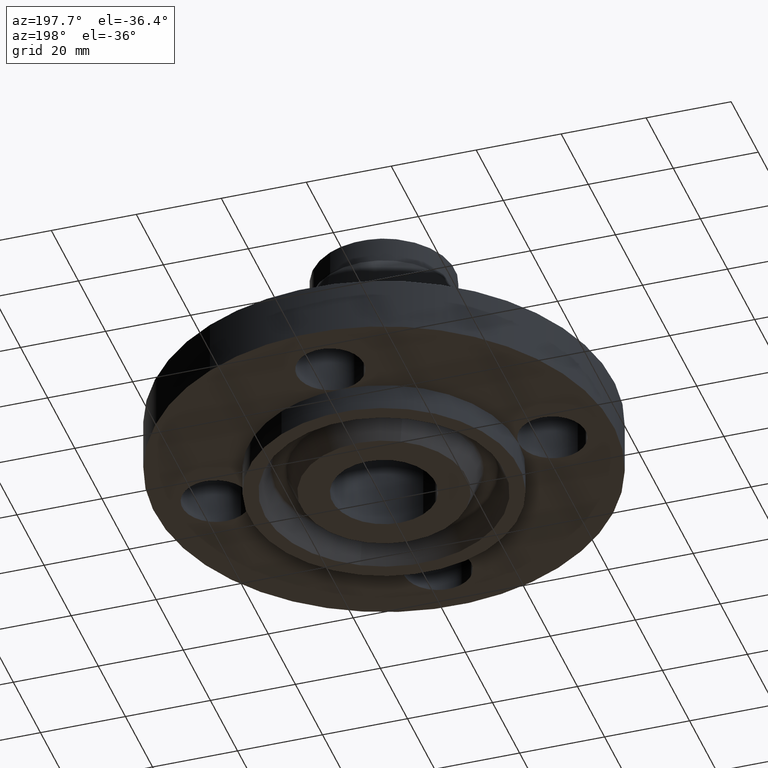
[diagram: clean part render]
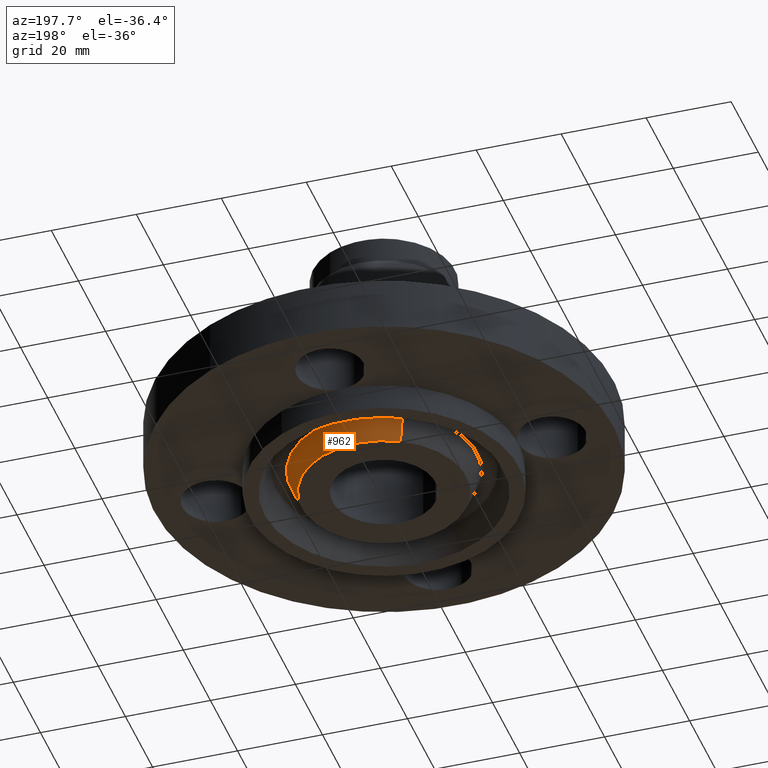
[diagram: same view with one face highlighted and labeled with its STEP entity id]
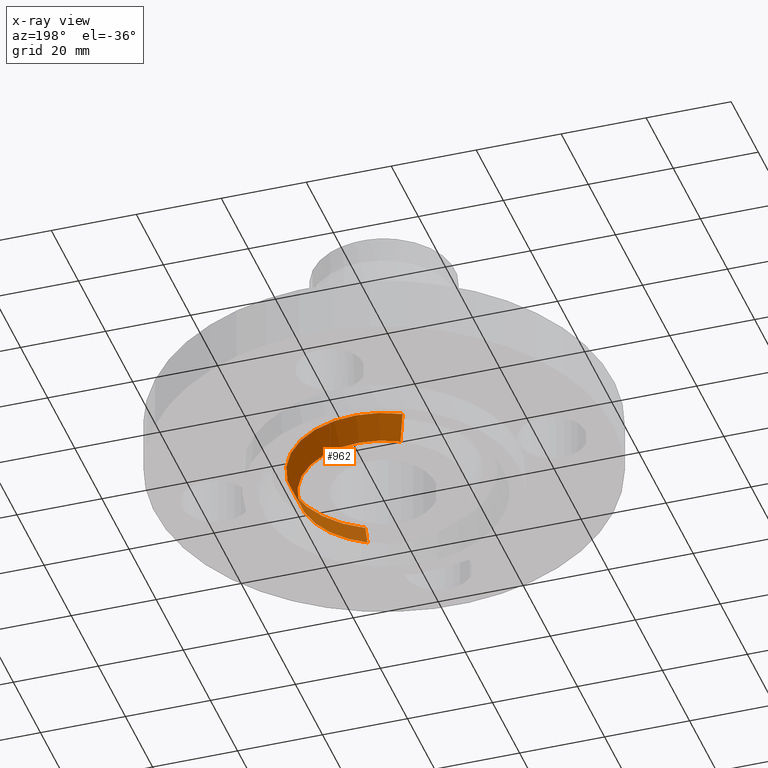
[diagram: x-ray of the same camera — body ghosted, the highlighted face saturated]
A machine part, auxiliary view. The second image highlights one B-rep face of the part: STEP entity #962.
The next image is the same camera in x-ray: the body ghosted, the highlighted face saturated — about 0% of this face is hidden behind the body in this view.
In plain terms, the highlighted conical surface has half-angle 23 deg.
Its self-contained STEP definition (entity closure, byte-faithful):
#768=AXIS2_PLACEMENT_3D('Circle Axis2P3D',#766,#767,$) ;
#912=AXIS2_PLACEMENT_3D('Circle Axis2P3D',#910,#911,$) ;
#944=AXIS2_PLACEMENT_3D('Cone Axis2P3D',#941,#942,#943) ;
#766=CARTESIAN_POINT('Axis2P3D Location',(6.99353086378E-017,0.,-0.250000000001)) ;
#770=CARTESIAN_POINT('Vertex',(-0.367060177995,0.67189914895,-0.250000000001)) ;
#772=CARTESIAN_POINT('Vertex',(0.367060177995,-0.67189914895,-0.250000000001)) ;
#907=CARTESIAN_POINT('Vertex',(0.41406154817,-0.757934579959,-0.0190396522348)) ;
#910=CARTESIAN_POINT('Axis2P3D Location',(0.,0.,-0.0190396522348)) ;
#914=CARTESIAN_POINT('Vertex',(-0.41406154817,0.757934579959,-0.0190396522348)) ;
#941=CARTESIAN_POINT('Axis2P3D Location',(0.,0.,-0.310000000001)) ;
#946=CARTESIAN_POINT('Line Origine',(-0.390560863083,0.714916864455,-0.134519826118)) ;
#951=CARTESIAN_POINT('Line Origine',(0.390560863083,-0.714916864455,-0.134519826118)) ;
#767=DIRECTION('Axis2P3D Direction',(0.,0.,-0.0393700787402)) ;
#911=DIRECTION('Axis2P3D Direction',(0.,0.,0.0393700787402)) ;
#942=DIRECTION('Axis2P3D Direction',(0.,0.,0.0393700787402)) ;
#943=DIRECTION('Axis2P3D XDirection',(-0.0188750212049,0.0345504945626,0.)) ;
#947=DIRECTION('Vector Direction',(-0.00737505833565,0.0134999537303,0.0362403485611)) ;
#952=DIRECTION('Vector Direction',(0.00737505833565,-0.0134999537303,0.0362403485611)) ;
#948=VECTOR('Line Direction',#947,0.0393700787402) ;
#953=VECTOR('Line Direction',#952,0.0393700787402) ;
#957=ORIENTED_EDGE('',*,*,#950,.F.) ;
#958=ORIENTED_EDGE('',*,*,#916,.F.) ;
#959=ORIENTED_EDGE('',*,*,#955,.T.) ;
#960=ORIENTED_EDGE('',*,*,#774,.F.) ;
#962=ADVANCED_FACE('PartBody',(#961),#945,.T.) ;
#769=CIRCLE('generated circle',#768,0.765625000003) ;
#913=CIRCLE('generated circle',#912,0.863661851173) ;
#945=CONICAL_SURFACE('Cone',#944,0.74015651103,0.401425727959) ;
#774=EDGE_CURVE('',#771,#773,#769,.T.) ;
#916=EDGE_CURVE('',#908,#915,#913,.T.) ;
#950=EDGE_CURVE('',#915,#771,#949,.F.) ;
#955=EDGE_CURVE('',#908,#773,#954,.F.) ;
#956=EDGE_LOOP('',(#957,#958,#959,#960)) ;
#961=FACE_OUTER_BOUND('',#956,.T.) ;
#949=LINE('Line',#946,#948) ;
#954=LINE('Line',#951,#953) ;
#771=VERTEX_POINT('',#770) ;
#773=VERTEX_POINT('',#772) ;
#908=VERTEX_POINT('',#907) ;
#915=VERTEX_POINT('',#914) ;